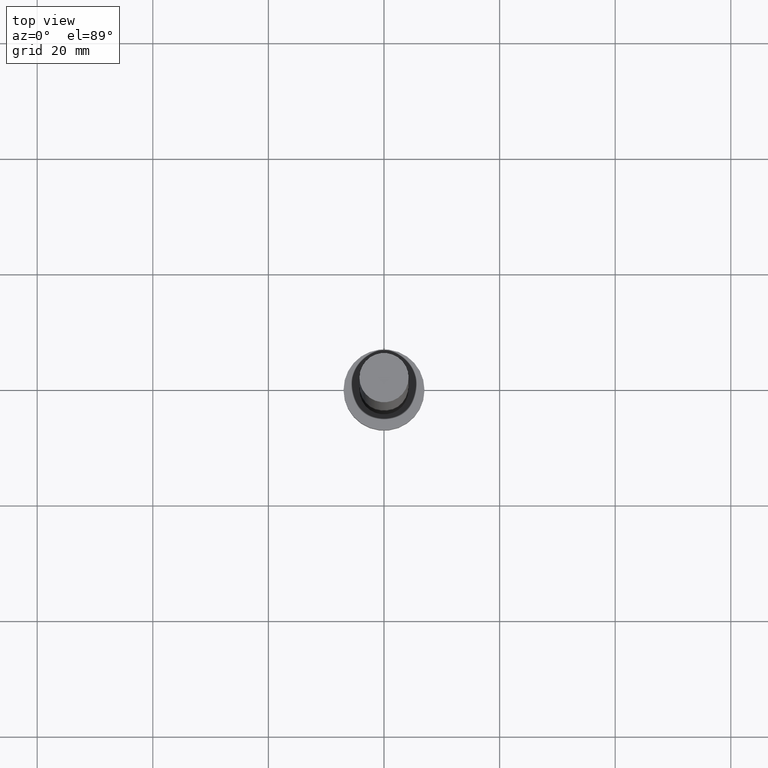
[diagram: clean part render]
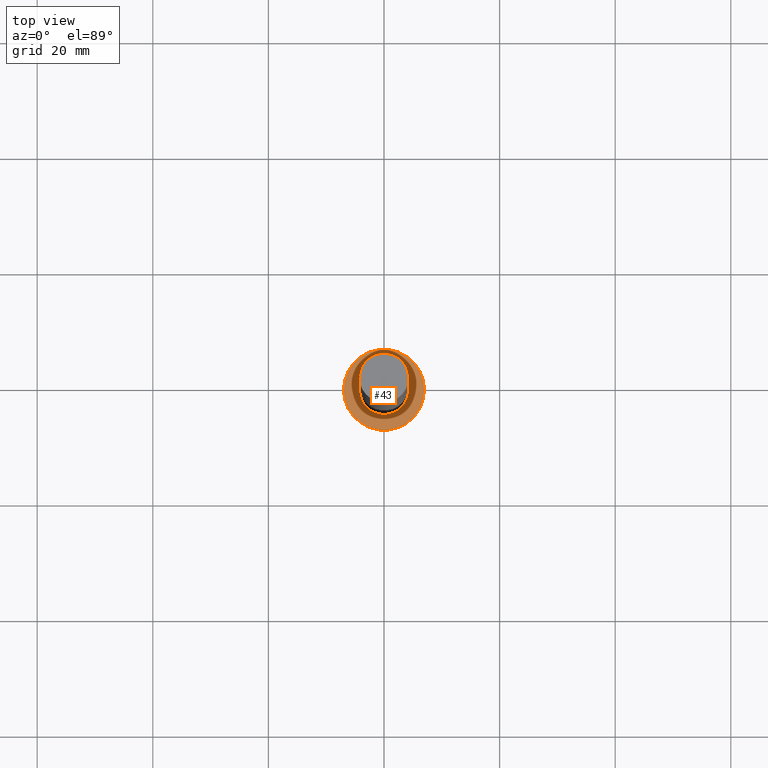
[diagram: same view with one face highlighted and labeled with its STEP entity id]
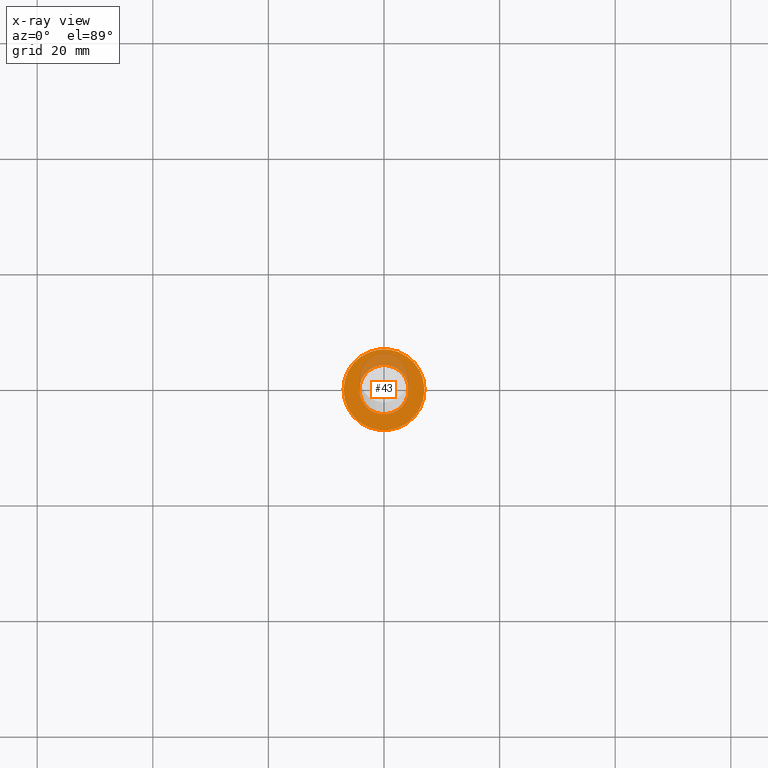
[diagram: x-ray of the same camera — body ghosted, the highlighted face saturated]
A machine part, top view. The second image highlights one B-rep face of the part: STEP entity #43.
The next image is the same camera in x-ray: the body ghosted, the highlighted face saturated — about 18% of this face is hidden behind the body in this view.
In plain terms, the highlighted planar face has unit normal (0, 0, 1).
Its self-contained STEP definition (entity closure, byte-faithful):
#3 = CIRCLE ( 'NONE', #236, 7.000000000000000000 ) ;
#10 = DIRECTION ( 'NONE',  ( 1.000000000000000000, 0.000000000000000000, 0.000000000000000000 ) ) ;
#23 = VERTEX_POINT ( 'NONE', #173 ) ;
#32 = ORIENTED_EDGE ( 'NONE', *, *, #68, .T. ) ;
#43 = ADVANCED_FACE ( 'NONE', ( #71, #70 ), #136, .T. ) ;
#52 = ORIENTED_EDGE ( 'NONE', *, *, #240, .F. ) ;
#61 = AXIS2_PLACEMENT_3D ( 'NONE', #210, #194, #10 ) ;
#65 = EDGE_LOOP ( 'NONE', ( #52, #196 ) ) ;
#68 = EDGE_CURVE ( 'NONE', #23, #138, #214, .T. ) ;
#70 = FACE_OUTER_BOUND ( 'NONE', #170, .T. ) ;
#71 = FACE_BOUND ( 'NONE', #65, .T. ) ;
#74 = DIRECTION ( 'NONE',  ( 1.000000000000000000, 0.000000000000000000, 0.000000000000000000 ) ) ;
#77 = DIRECTION ( 'NONE',  ( 1.000000000000000000, 0.000000000000000000, 0.000000000000000000 ) ) ;
#80 = EDGE_CURVE ( 'NONE', #212, #175, #139, .T. ) ;
#93 = DIRECTION ( 'NONE',  ( 0.000000000000000000, 0.000000000000000000, 1.000000000000000000 ) ) ;
#106 = ORIENTED_EDGE ( 'NONE', *, *, #130, .T. ) ;
#120 = DIRECTION ( 'NONE',  ( 1.000000000000000000, 0.000000000000000000, 0.000000000000000000 ) ) ;
#130 = EDGE_CURVE ( 'NONE', #138, #23, #3, .T. ) ;
#136 = PLANE ( 'NONE',  #225 ) ;
#138 = VERTEX_POINT ( 'NONE', #164 ) ;
#139 = CIRCLE ( 'NONE', #209, 4.250000000000000000 ) ;
#145 = CARTESIAN_POINT ( 'NONE',  ( -4.250000000000000000, 0.000000000000000000, 5.000000000000000000 ) ) ;
#147 = CARTESIAN_POINT ( 'NONE',  ( 0.000000000000000000, 0.000000000000000000, 5.000000000000000000 ) ) ;
#154 = DIRECTION ( 'NONE',  ( 0.000000000000000000, 0.000000000000000000, 1.000000000000000000 ) ) ;
#157 = CARTESIAN_POINT ( 'NONE',  ( 0.000000000000000000, 0.000000000000000000, 5.000000000000000000 ) ) ;
#164 = CARTESIAN_POINT ( 'NONE',  ( 7.000000000000000000, 8.572527594031473190E-16, 5.000000000000000000 ) ) ;
#165 = CARTESIAN_POINT ( 'NONE',  ( 4.250000000000000000, 5.204748896376250699E-16, 5.000000000000000000 ) ) ;
#170 = EDGE_LOOP ( 'NONE', ( #32, #106 ) ) ;
#173 = CARTESIAN_POINT ( 'NONE',  ( -7.000000000000000000, 0.000000000000000000, 5.000000000000000000 ) ) ;
#175 = VERTEX_POINT ( 'NONE', #145 ) ;
#193 = CIRCLE ( 'NONE', #202, 4.250000000000000000 ) ;
#194 = DIRECTION ( 'NONE',  ( 0.000000000000000000, 0.000000000000000000, 1.000000000000000000 ) ) ;
#196 = ORIENTED_EDGE ( 'NONE', *, *, #80, .F. ) ;
#202 = AXIS2_PLACEMENT_3D ( 'NONE', #221, #93, #74 ) ;
#209 = AXIS2_PLACEMENT_3D ( 'NONE', #220, #218, #120 ) ;
#210 = CARTESIAN_POINT ( 'NONE',  ( 0.000000000000000000, 0.000000000000000000, 5.000000000000000000 ) ) ;
#212 = VERTEX_POINT ( 'NONE', #165 ) ;
#214 = CIRCLE ( 'NONE', #61, 7.000000000000000000 ) ;
#218 = DIRECTION ( 'NONE',  ( 0.000000000000000000, 0.000000000000000000, 1.000000000000000000 ) ) ;
#220 = CARTESIAN_POINT ( 'NONE',  ( 0.000000000000000000, 0.000000000000000000, 5.000000000000000000 ) ) ;
#221 = CARTESIAN_POINT ( 'NONE',  ( 0.000000000000000000, 0.000000000000000000, 5.000000000000000000 ) ) ;
#225 = AXIS2_PLACEMENT_3D ( 'NONE', #157, #154, #228 ) ;
#228 = DIRECTION ( 'NONE',  ( 1.000000000000000000, 0.000000000000000000, -0.000000000000000000 ) ) ;
#235 = DIRECTION ( 'NONE',  ( 0.000000000000000000, 0.000000000000000000, 1.000000000000000000 ) ) ;
#236 = AXIS2_PLACEMENT_3D ( 'NONE', #147, #235, #77 ) ;
#240 = EDGE_CURVE ( 'NONE', #175, #212, #193, .T. ) ;